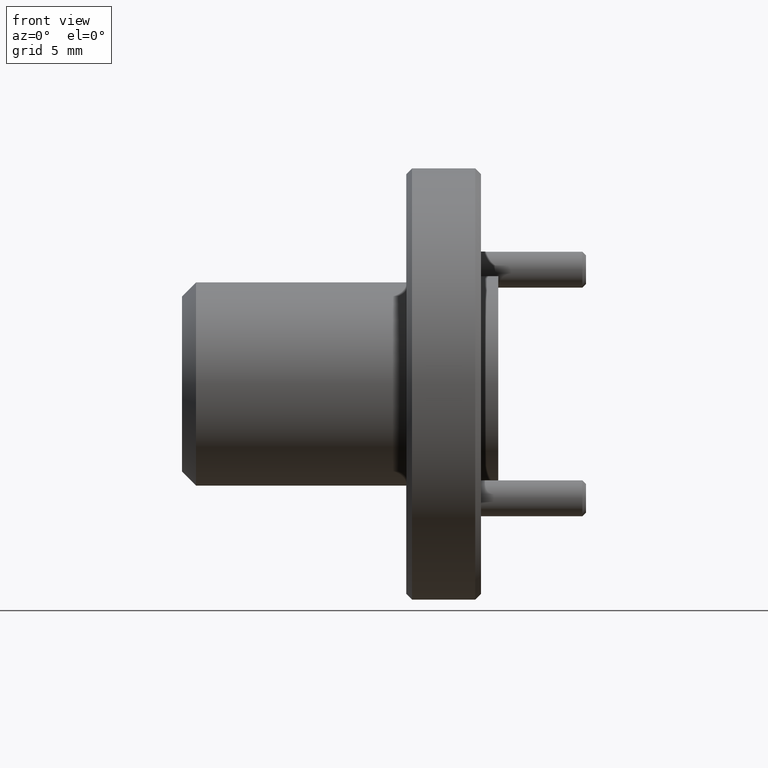
[diagram: clean part render]
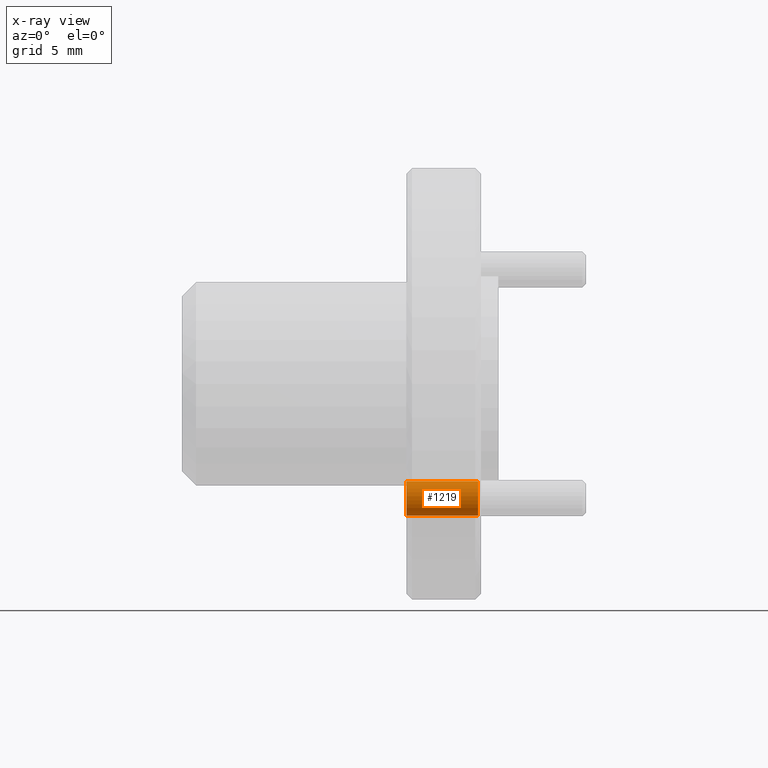
[diagram: x-ray — body ghosted, one internal face saturated and labeled with its STEP entity id]
A machine part, front view, then the same camera in x-ray: the body is ghosted and one INTERNAL B-rep face — a face not visible from any outside direction — is saturated and labeled: STEP entity #1219.
In plain terms, the highlighted cylindrical surface (edge-blend (fillet) strip) has radius 0.7556 mm, axis along (1, -0, -0).
Its self-contained STEP definition (entity closure, byte-faithful):
#35 = AXIS2_PLACEMENT_3D ( 'NONE', #1093, #951, #764 ) ;
#112 = CARTESIAN_POINT ( 'NONE',  ( 0.3505151396269433600, 0.2712316908247487900, 0.3000236844282134800 ) ) ;
#122 = ORIENTED_EDGE ( 'NONE', *, *, #1596, .F. ) ;
#170 = AXIS2_PLACEMENT_3D ( 'NONE', #342, #1135, #1614 ) ;
#247 = CARTESIAN_POINT ( 'NONE',  ( 0.2205151396269433600, 0.2712316908247487900, 0.2405236844282135600 ) ) ;
#341 = VERTEX_POINT ( 'NONE', #1217 ) ;
#342 = CARTESIAN_POINT ( 'NONE',  ( 0.3505151396269433600, 0.2712316908247487900, 0.2702736844282135300 ) ) ;
#364 = VERTEX_POINT ( 'NONE', #1750 ) ;
#398 = FACE_OUTER_BOUND ( 'NONE', #837, .T. ) ;
#504 = VERTEX_POINT ( 'NONE', #1764 ) ;
#523 = LINE ( 'NONE', #680, #705 ) ;
#620 = DIRECTION ( 'NONE',  ( 1.000000000000000000, -0.0000000000000000000, -0.0000000000000000000 ) ) ;
#621 = CIRCLE ( 'NONE', #35, 0.02974999999999997100 ) ;
#680 = CARTESIAN_POINT ( 'NONE',  ( 0.3505151396269433600, 0.2712316908247487900, 0.2405236844282135600 ) ) ;
#689 = DIRECTION ( 'NONE',  ( 1.000000000000000000, -0.0000000000000000000, -0.0000000000000000000 ) ) ;
#705 = VECTOR ( 'NONE', #689, 39.37007874015748100 ) ;
#725 = CIRCLE ( 'NONE', #976, 0.02974999999999997100 ) ;
#747 = VERTEX_POINT ( 'NONE', #247 ) ;
#764 = DIRECTION ( 'NONE',  ( 0.0000000000000000000, 0.0000000000000000000, 1.000000000000000000 ) ) ;
#837 = EDGE_LOOP ( 'NONE', ( #1306, #942, #1796, #122 ) ) ;
#850 = VECTOR ( 'NONE', #1861, 39.37007874015748100 ) ;
#942 = ORIENTED_EDGE ( 'NONE', *, *, #1720, .T. ) ;
#951 = DIRECTION ( 'NONE',  ( -1.000000000000000000, 0.0000000000000000000, 0.0000000000000000000 ) ) ;
#976 = AXIS2_PLACEMENT_3D ( 'NONE', #1084, #620, #1591 ) ;
#1025 = EDGE_CURVE ( 'NONE', #341, #504, #725, .T. ) ;
#1057 = EDGE_CURVE ( 'NONE', #747, #364, #621, .T. ) ;
#1084 = CARTESIAN_POINT ( 'NONE',  ( 0.3455151396269434100, 0.2712316908247487900, 0.2702736844282135300 ) ) ;
#1093 = CARTESIAN_POINT ( 'NONE',  ( 0.2205151396269433600, 0.2712316908247487900, 0.2702736844282135300 ) ) ;
#1135 = DIRECTION ( 'NONE',  ( 1.000000000000000000, -0.0000000000000000000, -0.0000000000000000000 ) ) ;
#1217 = CARTESIAN_POINT ( 'NONE',  ( 0.3455151396269434100, 0.2712316908247487900, 0.3000236844282134800 ) ) ;
#1219 = ADVANCED_FACE ( 'NONE', ( #398 ), #1975, .F. ) ;
#1306 = ORIENTED_EDGE ( 'NONE', *, *, #1057, .T. ) ;
#1591 = DIRECTION ( 'NONE',  ( 0.0000000000000000000, 0.0000000000000000000, -1.000000000000000000 ) ) ;
#1596 = EDGE_CURVE ( 'NONE', #747, #504, #523, .T. ) ;
#1614 = DIRECTION ( 'NONE',  ( 0.0000000000000000000, 0.0000000000000000000, -1.000000000000000000 ) ) ;
#1706 = LINE ( 'NONE', #112, #850 ) ;
#1720 = EDGE_CURVE ( 'NONE', #364, #341, #1706, .T. ) ;
#1750 = CARTESIAN_POINT ( 'NONE',  ( 0.2205151396269433600, 0.2712316908247487900, 0.3000236844282134800 ) ) ;
#1764 = CARTESIAN_POINT ( 'NONE',  ( 0.3455151396269434100, 0.2712316908247487900, 0.2405236844282135600 ) ) ;
#1796 = ORIENTED_EDGE ( 'NONE', *, *, #1025, .T. ) ;
#1861 = DIRECTION ( 'NONE',  ( 1.000000000000000000, -0.0000000000000000000, -0.0000000000000000000 ) ) ;
#1975 = CYLINDRICAL_SURFACE ( 'NONE', #170, 0.02974999999999997100 ) ;